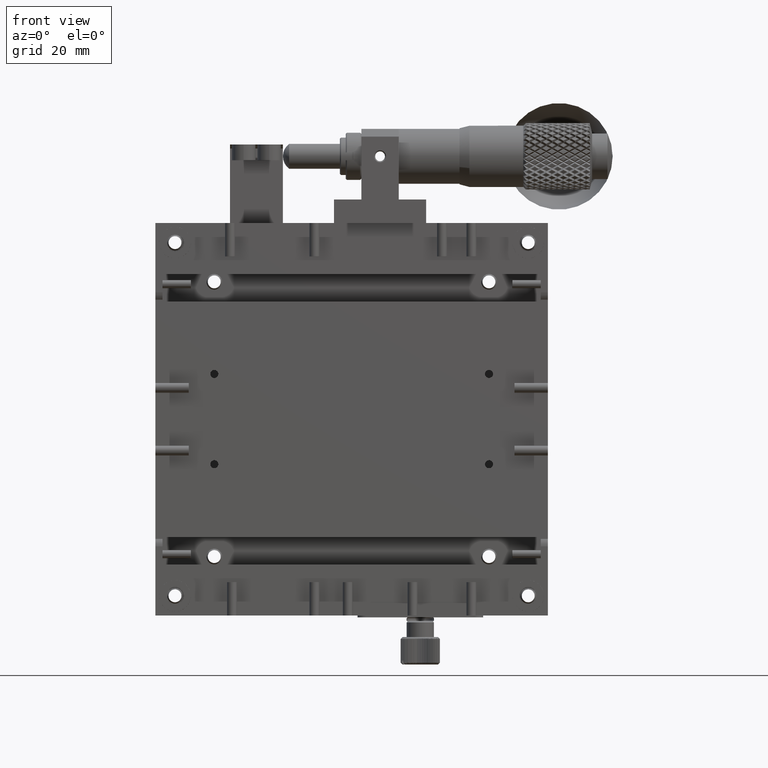
[diagram: clean part render]
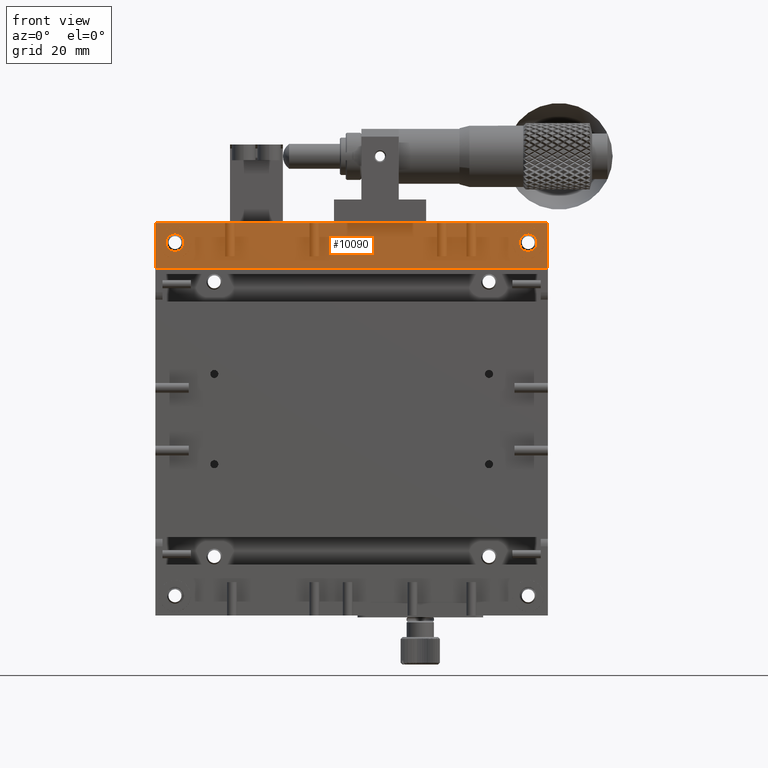
[diagram: same view with one face highlighted and labeled with its STEP entity id]
A machine part, front view. The second image highlights one B-rep face of the part: STEP entity #10090.
In plain terms, the highlighted planar face has unit normal (0, 1, -0).
Its self-contained STEP definition (entity closure, byte-faithful):
#353 = CARTESIAN_POINT ( 'NONE',  ( -32.50259589077302280, -14.79094997660292776, 43.15435329946645737 ) ) ;
#1222 = DIRECTION ( 'NONE',  ( 1.000000000000000000, 0.000000000000000000, -0.000000000000000000 ) ) ;
#1969 = CARTESIAN_POINT ( 'NONE',  ( 58.20797394252554824, -14.79094997660292776, 47.17266992538909420 ) ) ;
#2017 = CARTESIAN_POINT ( 'NONE',  ( -31.19890064642099503, -14.79094997660293132, 47.25001250000001107 ) ) ;
#2433 = CARTESIAN_POINT ( 'NONE',  ( 56.55106567237071857, -14.79094997660292776, 44.85712919023118417 ) ) ;
#2481 = CARTESIAN_POINT ( 'NONE',  ( -31.96036975628322452, -14.79094997660292954, 47.11733707280841088 ) ) ;
#3300 = CARTESIAN_POINT ( 'NONE',  ( -30.12531427503235903, -14.79094997660292954, 46.98033019345649564 ) ) ;
#3554 = LINE ( 'NONE', #62729, #9135 ) ;
#3795 = CARTESIAN_POINT ( 'NONE',  ( -29.49817337994961974, -14.79094997660293309, 43.51870673843266246 ) ) ;
#3838 = EDGE_LOOP ( 'NONE', ( #88240, #36170 ) ) ;
#4402 = VERTEX_POINT ( 'NONE', #60119 ) ;
#5537 = CARTESIAN_POINT ( 'NONE',  ( 59.75390713777196794, -14.79094997660292421, 47.03905224904563909 ) ) ;
#5814 = CARTESIAN_POINT ( 'NONE',  ( 57.84829156939325401, -14.79094997660292776, 42.96097275094939505 ) ) ;
#6017 = CARTESIAN_POINT ( 'NONE',  ( 59.91785962750893901, -14.79094997660293132, 43.02214543558712023 ) ) ;
#6503 = LINE ( 'NONE', #66195, #76058 ) ;
#6811 = B_SPLINE_CURVE_WITH_KNOTS ( 'NONE', 3,
 ( #47279, #55599, #32646, #10648, #84024, #31700, #61999, #11133, #10155, #40947, #3795, #62477, #61530, #77166, #24372, #39963, #92328, #84975, #17995, #24840, #46788, #78149, #63454, #9676, #47754, #76203, #39490, #40462, #92808, #69369, #3300, #33134, #62968, #25821, #9203, #53700, #83559, #39022 ),
 .UNSPECIFIED., .F., .F.,
 ( 4, 1, 1, 1, 2, 2, 2, 1, 1, 1, 2, 2, 2, 1, 1, 1, 2, 2, 2, 1, 1, 1, 2, 2, 4 ),
 ( 0.000000000000000000, 0.06249999999999378275, 0.09374999999999114597, 0.1093749999999902578, 0.1171874999999905353, 0.1249999999999908129, 0.2500000000000066613, 0.3125000000000136002, 0.3437500000000170419, 0.3593750000000187628, 0.3671875000000205946, 0.3750000000000224265, 0.5000000000000363043, 0.5625000000000417444, 0.5937500000000458522, 0.6093750000000494049, 0.6171875000000497380, 0.6250000000000500711, 0.7500000000000259792, 0.8125000000000144329, 0.8437500000000086597, 0.8593750000000064393, 0.8671875000000052180, 0.8750000000000039968, 1.000000000000000000 ),
 .UNSPECIFIED. ) ;
#9135 = VECTOR ( 'NONE', #70584, 1000.000000000000000 ) ;
#9203 = CARTESIAN_POINT ( 'NONE',  ( -30.35407202288385520, -14.79094997660292599, 47.08545383061508716 ) ) ;
#9290 = CARTESIAN_POINT ( 'NONE',  ( 57.68433907963596141, -14.79094997660292776, 46.97787956439976398 ) ) ;
#9324 = CARTESIAN_POINT ( 'NONE',  ( 58.80109935357900497, -14.79094997660293132, 47.25001250000001107 ) ) ;
#9331 = DIRECTION ( 'NONE',  ( 0.000000000000000000, 5.016799831173580724E-17, 1.000000000000000000 ) ) ;
#9676 = CARTESIAN_POINT ( 'NONE',  ( -29.08156054868064899, -14.79094997660292776, 45.76144236837262724 ) ) ;
#9764 = CARTESIAN_POINT ( 'NONE',  ( 56.71565380253721145, -14.79094997660292776, 45.84483047010171219 ) ) ;
#10041 = CARTESIAN_POINT ( 'NONE',  ( 63.80109935357899786, -14.79094997660293132, 38.50001249999998265 ) ) ;
#10090 = ADVANCED_FACE ( 'NONE', ( #76331, #83199, #31345 ), #61647, .T. ) ;
#10155 = CARTESIAN_POINT ( 'NONE',  ( -30.08214037248891870, -14.79094997660292599, 43.02214543559126270 ) ) ;
#10648 = CARTESIAN_POINT ( 'NONE',  ( -30.60577523537453004, -14.79094997660292776, 42.82735507461089242 ) ) ;
#11133 = CARTESIAN_POINT ( 'NONE',  ( -30.38872174849538510, -14.79094997660292421, 42.90085403429813482 ) ) ;
#11432 = CARTESIAN_POINT ( 'NONE',  ( 59.36346401773032966, -14.79094997660293132, 47.19735372579684451 ) ) ;
#12388 = CARTESIAN_POINT ( 'NONE',  ( 59.61127825150474990, -14.79094997660292776, 42.90085403429841904 ) ) ;
#12916 = LINE ( 'NONE', #35883, #84294 ) ;
#13485 = CARTESIAN_POINT ( 'NONE',  ( -36.19890064642101635, -14.79094997660293132, 38.50001249999998265 ) ) ;
#15026 = CARTESIAN_POINT ( 'NONE',  ( -31.48519427839219276, -14.79094997660292776, 42.75001249999997555 ) ) ;
#15509 = CARTESIAN_POINT ( 'NONE',  ( -33.17676771083168319, -14.79094997660293132, 43.88325222607188181 ) ) ;
#16212 = CARTESIAN_POINT ( 'NONE',  ( 13.80109935357899964, -14.79094997660292954, 1.249999999342055190E-05 ) ) ;
#17605 = CARTESIAN_POINT ( 'NONE',  ( 58.80109935357900497, -14.79094997660293132, 47.25001250000001107 ) ) ;
#17995 = CARTESIAN_POINT ( 'NONE',  ( -28.94896800883748966, -14.79094997660292954, 44.71424588046046722 ) ) ;
#18078 = CARTESIAN_POINT ( 'NONE',  ( 56.73873740731944793, -14.79094997660292599, 45.89983142880613798 ) ) ;
#18615 = CARTESIAN_POINT ( 'NONE',  ( -33.27640085791892233, -14.79094997660292954, 45.86423294661595662 ) ) ;
#19261 = CARTESIAN_POINT ( 'NONE',  ( 58.80109935357900497, -14.79094997660293132, 47.25001250000001107 ) ) ;
#19734 = CARTESIAN_POINT ( 'NONE',  ( 60.90609018335116787, -14.79094997660292599, 45.79489079252449102 ) ) ;
#20501 = CARTESIAN_POINT ( 'NONE',  ( 56.82323228917356062, -14.79094997660293132, 43.88325222605858755 ) ) ;
#21166 = CARTESIAN_POINT ( 'NONE',  ( 59.66531980019563974, -14.79094997660292776, 47.07751271149700045 ) ) ;
#21771 = LINE ( 'NONE', #68246, #80019 ) ;
#21858 = CARTESIAN_POINT ( 'NONE',  ( -32.06312109303728164, -14.79094997660293132, 42.92251228850241063 ) ) ;
#22348 = CARTESIAN_POINT ( 'NONE',  ( -33.44883328400825917, -14.79094997660292776, 45.28577911954706536 ) ) ;
#24372 = CARTESIAN_POINT ( 'NONE',  ( -29.13653870016317526, -14.79094997660292954, 44.10019357119168149 ) ) ;
#24840 = CARTESIAN_POINT ( 'NONE',  ( -28.94886696521273350, -14.79094997660293132, 45.14289580976975458 ) ) ;
#24936 = CARTESIAN_POINT ( 'NONE',  ( 56.66585323829990983, -14.79094997660292954, 44.28886888802212951 ) ) ;
#25821 = CARTESIAN_POINT ( 'NONE',  ( -30.33468019980510633, -14.79094997660292776, 47.07751271149749783 ) ) ;
#25829 = VERTEX_POINT ( 'NONE', #35904 ) ;
#25941 = VERTEX_POINT ( 'NONE', #9324 ) ;
#25960 = CARTESIAN_POINT ( 'NONE',  ( -32.89962791289138266, -14.79094997660292954, 46.48131826156937052 ) ) ;
#26604 = CARTESIAN_POINT ( 'NONE',  ( 60.84013910262486746, -14.79094997660292954, 44.04720471580802865 ) ) ;
#27078 = CARTESIAN_POINT ( 'NONE',  ( 60.64675855410876437, -14.79094997660292243, 43.69631725564771330 ) ) ;
#27551 = CARTESIAN_POINT ( 'NONE',  ( 60.28240511515115685, -14.79094997660292776, 46.70073976646656888 ) ) ;
#27841 = CARTESIAN_POINT ( 'NONE',  ( 57.95627073004132512, -14.79094997660292599, 42.91457116938489946 ) ) ;
#28043 = CARTESIAN_POINT ( 'NONE',  ( 60.86346129983478193, -14.79094997660293132, 44.10019357119004724 ) ) ;
#28257 = CARTESIAN_POINT ( 'NONE',  ( -32.15170843061287798, -14.79094997660292599, 42.96097275095245749 ) ) ;
#28527 = CARTESIAN_POINT ( 'NONE',  ( 61.05113303478727005, -14.79094997660293132, 45.14289580976490868 ) ) ;
#29534 = VERTEX_POINT ( 'NONE', #10041 ) ;
#29916 = DIRECTION ( 'NONE',  ( 0.000000000000000000, 1.000000000000000000, -5.016799831173580724E-17 ) ) ;
#31091 = CARTESIAN_POINT ( 'NONE',  ( 58.80109935357900497, -14.79094997660293132, 42.75001249999997555 ) ) ;
#31345 = FACE_BOUND ( 'NONE', #3838, .T. ) ;
#31501 = VERTEX_POINT ( 'NONE', #95102 ) ;
#31700 = CARTESIAN_POINT ( 'NONE',  ( -30.43743153656123823, -14.79094997660292776, 42.88268792719158995 ) ) ;
#32258 = CARTESIAN_POINT ( 'NONE',  ( 56.57078745179072854, -14.79094997660292776, 44.64644007084029198 ) ) ;
#32309 = CARTESIAN_POINT ( 'NONE',  ( -33.04455984695693616, -14.79094997660292776, 46.30370774434959458 ) ) ;
#32646 = CARTESIAN_POINT ( 'NONE',  ( -30.84517923263046058, -14.79094997660292421, 42.76975954032617011 ) ) ;
#33134 = CARTESIAN_POINT ( 'NONE',  ( -30.24609286223034132, -14.79094997660292599, 47.03905224904720939 ) ) ;
#33905 = CARTESIAN_POINT ( 'NONE',  ( 59.39422476462042511, -14.79094997660293132, 42.82735507461089952 ) ) ;
#34878 = CARTESIAN_POINT ( 'NONE',  ( 60.90025781928046200, -14.79094997660292776, 45.81019139792598338 ) ) ;
#35341 = CARTESIAN_POINT ( 'NONE',  ( 59.70091828238956566, -14.79094997660293132, 47.06237444625561750 ) ) ;
#35632 = CARTESIAN_POINT ( 'NONE',  ( 57.90128042477279280, -14.79094997660292243, 42.93765055374139195 ) ) ;
#35834 = CARTESIAN_POINT ( 'NONE',  ( 61.03141125536725298, -14.79094997660292776, 45.35358492915285922 ) ) ;
#35883 = CARTESIAN_POINT ( 'NONE',  ( -36.19890064642101635, -14.79094997660293487, -49.44570660152349717 ) ) ;
#35904 = CARTESIAN_POINT ( 'NONE',  ( -36.19890064642102345, -14.79094997660293309, 50.00001249999999686 ) ) ;
#36170 = ORIENTED_EDGE ( 'NONE', *, *, #70396, .T. ) ;
#36359 = EDGE_CURVE ( 'NONE', #25829, #71212, #12916, .T. ) ;
#36928 = CARTESIAN_POINT ( 'NONE',  ( -31.19890064642099503, -14.79094997660293132, 47.25001250000001107 ) ) ;
#37286 = DIRECTION ( 'NONE',  ( 0.000000000000000000, 0.000000000000000000, -1.000000000000000000 ) ) ;
#38459 = EDGE_CURVE ( 'NONE', #25941, #56704, #95889, .T. ) ;
#38621 = CARTESIAN_POINT ( 'NONE',  ( 58.65813090973007604, -14.79094997660293132, 47.25001250000001818 ) ) ;
#39022 = CARTESIAN_POINT ( 'NONE',  ( -31.19890064642099503, -14.79094997660293132, 47.25001250000001107 ) ) ;
#39490 = CARTESIAN_POINT ( 'NONE',  ( -29.22103358201432854, -14.79094997660292954, 46.11677277393613394 ) ) ;
#39963 = CARTESIAN_POINT ( 'NONE',  ( -29.12140043492284036, -14.79094997660292776, 44.13579205338452738 ) ) ;
#40053 = CARTESIAN_POINT ( 'NONE',  ( 56.95544015303472207, -14.79094997660292599, 46.30370774433777825 ) ) ;
#40462 = CARTESIAN_POINT ( 'NONE',  ( -29.38854139655004616, -14.79094997660292954, 46.37152874007206549 ) ) ;
#40947 = CARTESIAN_POINT ( 'NONE',  ( -29.82738440635453259, -14.79094997660292954, 43.18965325012543843 ) ) ;
#41231 = CARTESIAN_POINT ( 'NONE',  ( 59.08739298555889974, -14.79094997660292776, 47.25001250000001818 ) ) ;
#41370 = EDGE_CURVE ( 'NONE', #31501, #94165, #6811, .T. ) ;
#41725 = CARTESIAN_POINT ( 'NONE',  ( 59.59599826451223947, -14.79094997660292776, 42.89502982739543313 ) ) ;
#42591 = B_SPLINE_CURVE_WITH_KNOTS ( 'NONE', 3,
 ( #79392, #73040, #42696, #33905, #93587, #49998, #41725, #12388, #6017, #79871, #65207, #27078, #65700, #26604, #28043, #56887, #72079, #95538, #72556, #28527, #35834, #56397, #86740, #95044, #19734, #34878, #58332, #64719, #27551, #86257, #88179, #5537, #35341, #21166, #87699, #11432, #41231, #19261 ),
 .UNSPECIFIED., .F., .F.,
 ( 4, 1, 1, 1, 2, 2, 2, 1, 1, 1, 2, 2, 2, 1, 1, 1, 2, 2, 2, 1, 1, 1, 2, 2, 4 ),
 ( 0.000000000000000000, 0.06249999999997632449, 0.09374999999996570799, 0.1093749999999608230, 0.1171874999999598377, 0.1249999999999588385, 0.2499999999999672484, 0.3124999999999704681, 0.3437499999999720779, 0.3593749999999722999, 0.3671874999999723554, 0.3749999999999724665, 0.4999999999999960032, 0.5625000000000078826, 0.5937500000000125455, 0.6093750000000148770, 0.6171875000000159872, 0.6250000000000170974, 0.7499999999999901190, 0.8124999999999776845, 0.8437499999999725775, 0.8593749999999720224, 0.8671874999999729106, 0.8749999999999737987, 1.000000000000000000 ),
 .UNSPECIFIED. ) ;
#42696 = CARTESIAN_POINT ( 'NONE',  ( 59.15482076736279993, -14.79094997660292776, 42.76975954032615590 ) ) ;
#43385 = CARTESIAN_POINT ( 'NONE',  ( -31.76126531056359781, -14.79094997660293132, 42.80267127420315632 ) ) ;
#44790 = CARTESIAN_POINT ( 'NONE',  ( -32.09871957523088071, -14.79094997660292066, 42.93765055374323936 ) ) ;
#46788 = CARTESIAN_POINT ( 'NONE',  ( -28.96858874463273281, -14.79094997660293132, 45.35358492916137152 ) ) ;
#46868 = CARTESIAN_POINT ( 'NONE',  ( 56.82078166011388731, -14.79094997660292599, 46.07359887138002108 ) ) ;
#47279 = CARTESIAN_POINT ( 'NONE',  ( -31.19890064642099503, -14.79094997660293132, 42.75001249999997555 ) ) ;
#47367 = CARTESIAN_POINT ( 'NONE',  ( 58.44737793977907359, -14.79094997660292776, 47.23026545967383072 ) ) ;
#47754 = CARTESIAN_POINT ( 'NONE',  ( -29.09390981664883213, -14.79094997660292776, 45.79489079252565631 ) ) ;
#47841 = CARTESIAN_POINT ( 'NONE',  ( 56.72359914207994791, -14.79094997660293309, 45.86423294661430816 ) ) ;
#48389 = CARTESIAN_POINT ( 'NONE',  ( -31.91010943917897080, -14.79094997660292954, 47.13523282810403003 ) ) ;
#49303 = CARTESIAN_POINT ( 'NONE',  ( 58.51480572161165838, -14.79094997660293132, 42.75001249999998265 ) ) ;
#49998 = CARTESIAN_POINT ( 'NONE',  ( 59.56256846343702449, -14.79094997660293132, 42.88268792719158995 ) ) ;
#51631 = ORIENTED_EDGE ( 'NONE', *, *, #36359, .F. ) ;
#52632 = CARTESIAN_POINT ( 'NONE',  ( -32.27248701781171292, -14.79094997660292954, 43.01969480654294387 ) ) ;
#52933 = EDGE_CURVE ( 'NONE', #71212, #29534, #21771, .T. ) ;
#53700 = CARTESIAN_POINT ( 'NONE',  ( -30.63653598227353925, -14.79094997660292954, 47.19735372579683741 ) ) ;
#53783 = CARTESIAN_POINT ( 'NONE',  ( 58.08989056082103986, -14.79094997660292776, 47.13523282810402293 ) ) ;
#54247 = CARTESIAN_POINT ( 'NONE',  ( 57.42958311352003875, -14.79094997660292599, 46.81037174988406235 ) ) ;
#54786 = CARTESIAN_POINT ( 'NONE',  ( -33.26126259267838492, -14.79094997660292954, 45.89983142880926437 ) ) ;
#55262 = CARTESIAN_POINT ( 'NONE',  ( -32.57041688648949673, -14.79094997660292599, 46.81037174987052651 ) ) ;
#55435 = EDGE_LOOP ( 'NONE', ( #77537, #69806 ) ) ;
#55599 = CARTESIAN_POINT ( 'NONE',  ( -31.05593220257742360, -14.79094997660293132, 42.75001249999998265 ) ) ;
#55693 = CARTESIAN_POINT ( 'NONE',  ( 58.00620044264355357, -14.79094997660293132, 47.10499517260453928 ) ) ;
#55742 = CARTESIAN_POINT ( 'NONE',  ( -33.17921833987985281, -14.79094997660292776, 46.07359887138891708 ) ) ;
#56397 = CARTESIAN_POINT ( 'NONE',  ( 60.97380098555390759, -14.79094997660292421, 45.59302617256820866 ) ) ;
#56687 = CARTESIAN_POINT ( 'NONE',  ( 57.72751298219878890, -14.79094997660292776, 43.01969480653770717 ) ) ;
#56704 = VERTEX_POINT ( 'NONE', #31091 ) ;
#56887 = CARTESIAN_POINT ( 'NONE',  ( 60.87859956507605119, -14.79094997660292954, 44.13579205338368894 ) ) ;
#58057 = CARTESIAN_POINT ( 'NONE',  ( -31.19890064642099503, -14.79094997660293132, 42.75001249999997555 ) ) ;
#58136 = CARTESIAN_POINT ( 'NONE',  ( 58.23873468944024268, -14.79094997660293132, 42.80267127420317053 ) ) ;
#58332 = CARTESIAN_POINT ( 'NONE',  ( 60.77896641799389954, -14.79094997660293132, 46.11677277392588792 ) ) ;
#59031 = CARTESIAN_POINT ( 'NONE',  ( -33.31624074416048131, -14.79094997660292421, 44.23858263162562565 ) ) ;
#60119 = CARTESIAN_POINT ( 'NONE',  ( 63.80109935357899786, -14.79094997660293309, 50.00001249999999686 ) ) ;
#61530 = CARTESIAN_POINT ( 'NONE',  ( -29.21858295296083341, -14.79094997660293132, 43.92642612861371276 ) ) ;
#61647 = PLANE ( 'NONE',  #65302 ) ;
#61660 = CARTESIAN_POINT ( 'NONE',  ( -32.31566092035743054, -14.79094997660292954, 46.97787956440239299 ) ) ;
#61999 = CARTESIAN_POINT ( 'NONE',  ( -30.40400173548684748, -14.79094997660292599, 42.89502982739543313 ) ) ;
#62084 = CARTESIAN_POINT ( 'NONE',  ( 56.62839772160405971, -14.79094997660292776, 44.40699882742667626 ) ) ;
#62477 = CARTESIAN_POINT ( 'NONE',  ( -29.35324144588329531, -14.79094997660292421, 43.69631725565388081 ) ) ;
#62621 = CARTESIAN_POINT ( 'NONE',  ( -31.99379955735644288, -14.79094997660292954, 47.10499517260453217 ) ) ;
#62729 = CARTESIAN_POINT ( 'NONE',  ( 13.80109935357899964, -14.79094997660292776, 50.00001249999999686 ) ) ;
#62968 = CARTESIAN_POINT ( 'NONE',  ( -30.29908171761184477, -14.79094997660292599, 47.06237444625655542 ) ) ;
#63112 = CARTESIAN_POINT ( 'NONE',  ( -31.79202605747446242, -14.79094997660292776, 47.17266992538908710 ) ) ;
#63454 = CARTESIAN_POINT ( 'NONE',  ( -29.06365453114191766, -14.79094997660292954, 45.71115611197858186 ) ) ;
#64038 = CARTESIAN_POINT ( 'NONE',  ( 56.70194088787694398, -14.79094997660292776, 44.18983360207494826 ) ) ;
#64516 = CARTESIAN_POINT ( 'NONE',  ( 57.49740410924098200, -14.79094997660292243, 43.15435329945946563 ) ) ;
#64719 = CARTESIAN_POINT ( 'NONE',  ( 60.61145860344390002, -14.79094997660292599, 46.37152874007612269 ) ) ;
#65207 = CARTESIAN_POINT ( 'NONE',  ( 60.50182662004582568, -14.79094997660292599, 43.51870673842912396 ) ) ;
#65302 = AXIS2_PLACEMENT_3D ( 'NONE', #16212, #29916, #9331 ) ;
#65700 = CARTESIAN_POINT ( 'NONE',  ( 60.78141704703320869, -14.79094997660292776, 43.92642612860908002 ) ) ;
#66195 = CARTESIAN_POINT ( 'NONE',  ( 63.80109935357899786, -14.79094997660293487, 37.00001249999998976 ) ) ;
#66408 = CARTESIAN_POINT ( 'NONE',  ( -33.33414676169867619, -14.79094997660293132, 44.28886888801853416 ) ) ;
#68246 = CARTESIAN_POINT ( 'NONE',  ( 63.80109935357899786, -14.79094997660293487, 38.50001249999998265 ) ) ;
#69369 = CARTESIAN_POINT ( 'NONE',  ( -29.89520540207175969, -14.79094997660292421, 46.84567170053280449 ) ) ;
#69459 = CARTESIAN_POINT ( 'NONE',  ( 56.55116671599548539, -14.79094997660292776, 45.28577911953760093 ) ) ;
#69503 = CARTESIAN_POINT ( 'NONE',  ( -31.34186909026993106, -14.79094997660292421, 47.25001249999999686 ) ) ;
#69806 = ORIENTED_EDGE ( 'NONE', *, *, #41370, .T. ) ;
#69934 = CARTESIAN_POINT ( 'NONE',  ( 56.68375925583864472, -14.79094997660292599, 44.23858263162781412 ) ) ;
#70397 = EDGE_CURVE ( 'NONE', #4402, #29534, #6503, .T. ) ;
#70396 = EDGE_CURVE ( 'NONE', #56704, #25941, #42591, .T. ) ;
#70473 = CARTESIAN_POINT ( 'NONE',  ( -31.55262206022091220, -14.79094997660292776, 47.23026545967382361 ) ) ;
#70584 = DIRECTION ( 'NONE',  ( 1.000000000000000000, -0.000000000000000000, 0.000000000000000000 ) ) ;
#71212 = VERTEX_POINT ( 'NONE', #13485 ) ;
#71875 = CARTESIAN_POINT ( 'NONE',  ( 56.69610852380681365, -14.79094997660292599, 44.20513420747457900 ) ) ;
#72079 = CARTESIAN_POINT ( 'NONE',  ( 60.88654490462079139, -14.79094997660292421, 44.15519452989972393 ) ) ;
#72360 = CARTESIAN_POINT ( 'NONE',  ( 58.80109935357900497, -14.79094997660293132, 42.75001249999997555 ) ) ;
#72556 = CARTESIAN_POINT ( 'NONE',  ( 61.05103199116251744, -14.79094997660292776, 44.71424588047017323 ) ) ;
#73040 = CARTESIAN_POINT ( 'NONE',  ( 58.94406779741871816, -14.79094997660292954, 42.75001249999998265 ) ) ;
#73226 = ORIENTED_EDGE ( 'NONE', *, *, #93023, .T. ) ;
#73746 = CARTESIAN_POINT ( 'NONE',  ( -33.42921254820598875, -14.79094997660292776, 44.64644007083200705 ) ) ;
#74211 = CARTESIAN_POINT ( 'NONE',  ( -32.04372926995846171, -14.79094997660293132, 42.91457116938491367 ) ) ;
#76058 = VECTOR ( 'NONE', #37286, 1000.000000000000000 ) ;
#76203 = CARTESIAN_POINT ( 'NONE',  ( -29.09974218071903351, -14.79094997660292599, 45.81019139792533679 ) ) ;
#76291 = CARTESIAN_POINT ( 'NONE',  ( 58.03963024371677903, -14.79094997660292954, 47.11733707280840378 ) ) ;
#76331 = FACE_OUTER_BOUND ( 'NONE', #86903, .T. ) ;
#76777 = CARTESIAN_POINT ( 'NONE',  ( 56.76205960452678312, -14.79094997660292599, 45.95282028418563414 ) ) ;
#77166 = CARTESIAN_POINT ( 'NONE',  ( -29.15986089737164733, -14.79094997660292954, 44.04720471581071450 ) ) ;
#77260 = CARTESIAN_POINT ( 'NONE',  ( 56.60382565460935922, -14.79094997660292776, 45.56254761911425533 ) ) ;
#77537 = ORIENTED_EDGE ( 'NONE', *, *, #84468, .T. ) ;
#78149 = CARTESIAN_POINT ( 'NONE',  ( -29.02619901444607109, -14.79094997660292776, 45.59302617257456802 ) ) ;
#78287 = CARTESIAN_POINT ( 'NONE',  ( -33.28434619746256118, -14.79094997660292776, 45.84483047010169798 ) ) ;
#79179 = CARTESIAN_POINT ( 'NONE',  ( 56.99074010369522370, -14.79094997660292599, 43.62849625993674607 ) ) ;
#79392 = CARTESIAN_POINT ( 'NONE',  ( 58.80109935357900497, -14.79094997660293132, 42.75001249999997555 ) ) ;
#79871 = CARTESIAN_POINT ( 'NONE',  ( 60.17261559365453394, -14.79094997660292954, 43.18965325013249412 ) ) ;
#80019 = VECTOR ( 'NONE', #1222, 1000.000000000000000 ) ;
#80566 = CARTESIAN_POINT ( 'NONE',  ( -33.29805911212273628, -14.79094997660292776, 44.18983360207411692 ) ) ;
#80883 = DIRECTION ( 'NONE',  ( 0.000000000000000000, 0.000000000000000000, -1.000000000000000000 ) ) ;
#82502 = CARTESIAN_POINT ( 'NONE',  ( -33.00925989628879620, -14.79094997660292776, 43.62849625992877378 ) ) ;
#83199 = FACE_BOUND ( 'NONE', #55435, .T. ) ;
#83559 = CARTESIAN_POINT ( 'NONE',  ( -30.91260701444493719, -14.79094997660292954, 47.25001250000001107 ) ) ;
#84024 = CARTESIAN_POINT ( 'NONE',  ( -30.48769185366714396, -14.79094997660292776, 42.86479217189597080 ) ) ;
#84110 = CARTESIAN_POINT ( 'NONE',  ( 57.10037208710387091, -14.79094997660292776, 46.48131826156257063 ) ) ;
#84294 = VECTOR ( 'NONE', #80883, 1000.000000000000000 ) ;
#84365 = B_SPLINE_CURVE_WITH_KNOTS ( 'NONE', 3,
 ( #2017, #69503, #70473, #63112, #48389, #2481, #62621, #91499, #61660, #55262, #25960, #32309, #55742, #85603, #54786, #18615, #78287, #88875, #22348, #87915, #73746, #88394, #66408, #59031, #89361, #80566, #15509, #82502, #95267, #353, #52632, #28257, #44790, #21858, #74211, #43385, #15026, #58057 ),
 .UNSPECIFIED., .F., .F.,
 ( 4, 1, 1, 1, 2, 2, 2, 1, 1, 1, 2, 2, 2, 1, 1, 1, 2, 2, 2, 1, 1, 1, 2, 2, 4 ),
 ( 0.000000000000000000, 0.06250000000001219858, 0.09375000000002010891, 0.1093750000000230094, 0.1171875000000239669, 0.1250000000000249245, 0.2500000000000360822, 0.3125000000000406897, 0.3437500000000429656, 0.3593750000000428546, 0.3671875000000421885, 0.3750000000000415223, 0.5000000000000160982, 0.5625000000000033307, 0.5937499999999987788, 0.6093749999999983347, 0.6171874999999967804, 0.6249999999999952260, 0.7499999999999986677, 0.8125000000000014433, 0.8437500000000028866, 0.8593750000000043299, 0.8671875000000049960, 0.8750000000000055511, 1.000000000000000000 ),
 .UNSPECIFIED. ) ;
#84468 = EDGE_CURVE ( 'NONE', #94165, #31501, #84365, .T. ) ;
#84975 = CARTESIAN_POINT ( 'NONE',  ( -29.00162694745136704, -14.79094997660292954, 44.43747738087704846 ) ) ;
#85453 = ORIENTED_EDGE ( 'NONE', *, *, #70397, .T. ) ;
#85555 = CARTESIAN_POINT ( 'NONE',  ( 57.99092045565406295, -14.79094997660292599, 47.09917096570238471 ) ) ;
#85603 = CARTESIAN_POINT ( 'NONE',  ( -33.23794039546955759, -14.79094997660292954, 45.95282028419082110 ) ) ;
#86257 = CARTESIAN_POINT ( 'NONE',  ( 60.10479459793354806, -14.79094997660293132, 46.84567170052927310 ) ) ;
#86740 = CARTESIAN_POINT ( 'NONE',  ( 60.93634546885812142, -14.79094997660292954, 45.71115611197487993 ) ) ;
#86903 = EDGE_LOOP ( 'NONE', ( #87373, #51631, #73226, #85453 ) ) ;
#87373 = ORIENTED_EDGE ( 'NONE', *, *, #52933, .F. ) ;
#87699 = CARTESIAN_POINT ( 'NONE',  ( 59.64592797711591743, -14.79094997660292776, 47.08545383061508716 ) ) ;
#87915 = CARTESIAN_POINT ( 'NONE',  ( -33.44893432762739849, -14.79094997660292599, 44.85712919022644485 ) ) ;
#88179 = CARTESIAN_POINT ( 'NONE',  ( 59.87468572497160579, -14.79094997660292776, 46.98033019345384531 ) ) ;
#88240 = ORIENTED_EDGE ( 'NONE', *, *, #38459, .T. ) ;
#88394 = CARTESIAN_POINT ( 'NONE',  ( -33.37160227839347471, -14.79094997660292421, 44.40699882742045901 ) ) ;
#88875 = CARTESIAN_POINT ( 'NONE',  ( -33.39617434539439245, -14.79094997660292954, 45.56254761911451112 ) ) ;
#89361 = CARTESIAN_POINT ( 'NONE',  ( -33.30389147619272450, -14.79094997660292599, 44.20513420747341371 ) ) ;
#91499 = CARTESIAN_POINT ( 'NONE',  ( -32.00907954434632785, -14.79094997660292599, 47.09917096570219996 ) ) ;
#92328 = CARTESIAN_POINT ( 'NONE',  ( -29.11345509537921927, -14.79094997660292776, 44.15519452989882154 ) ) ;
#92808 = CARTESIAN_POINT ( 'NONE',  ( -29.71759488485187006, -14.79094997660292954, 46.70073976646860103 ) ) ;
#93023 = EDGE_CURVE ( 'NONE', #25829, #4402, #3554, .T. ) ;
#93587 = CARTESIAN_POINT ( 'NONE',  ( 59.51230814632990018, -14.79094997660292599, 42.86479217189596369 ) ) ;
#94165 = VERTEX_POINT ( 'NONE', #36928 ) ;
#94836 = CARTESIAN_POINT ( 'NONE',  ( 57.31979359201628199, -14.79094997660292954, 43.29928523352700154 ) ) ;
#95044 = CARTESIAN_POINT ( 'NONE',  ( 60.91843945131935101, -14.79094997660292954, 45.76144236837036772 ) ) ;
#95102 = CARTESIAN_POINT ( 'NONE',  ( -31.19890064642099503, -14.79094997660293132, 42.75001249999997555 ) ) ;
#95267 = CARTESIAN_POINT ( 'NONE',  ( -32.68020640799172583, -14.79094997660293309, 43.29928523353100189 ) ) ;
#95332 = CARTESIAN_POINT ( 'NONE',  ( 57.93687890696466525, -14.79094997660292776, 42.92251228850143718 ) ) ;
#95538 = CARTESIAN_POINT ( 'NONE',  ( 60.99837305254863651, -14.79094997660292954, 44.43747738086247523 ) ) ;
#95889 = B_SPLINE_CURVE_WITH_KNOTS ( 'NONE', 3,
 ( #17605, #38621, #47367, #1969, #53783, #76291, #55693, #85555, #9290, #54247, #84110, #40053, #46868, #76777, #18078, #47841, #9764, #77260, #69459, #2433, #32258, #62084, #24936, #69934, #71875, #64038, #20501, #79179, #94836, #64516, #56687, #5814, #35632, #95332, #27841, #58136, #49303, #72360 ),
 .UNSPECIFIED., .F., .F.,
 ( 4, 1, 1, 1, 2, 2, 2, 1, 1, 1, 2, 2, 2, 1, 1, 1, 2, 2, 2, 1, 1, 1, 2, 2, 4 ),
 ( 0.000000000000000000, 0.06249999999999289457, 0.09374999999999114597, 0.1093749999999892308, 0.1171874999999877737, 0.1249999999999863165, 0.2499999999999750200, 0.3124999999999693578, 0.3437499999999665268, 0.3593749999999663602, 0.3671874999999650280, 0.3749999999999636957, 0.4999999999999492628, 0.5624999999999436007, 0.5937499999999426015, 0.6093749999999406031, 0.6171874999999410472, 0.6249999999999414912, 0.7499999999999669154, 0.8124999999999795719, 0.8437499999999859002, 0.8593749999999884537, 0.8671874999999884537, 0.8749999999999884537, 1.000000000000000000 ),
 .UNSPECIFIED. ) ;